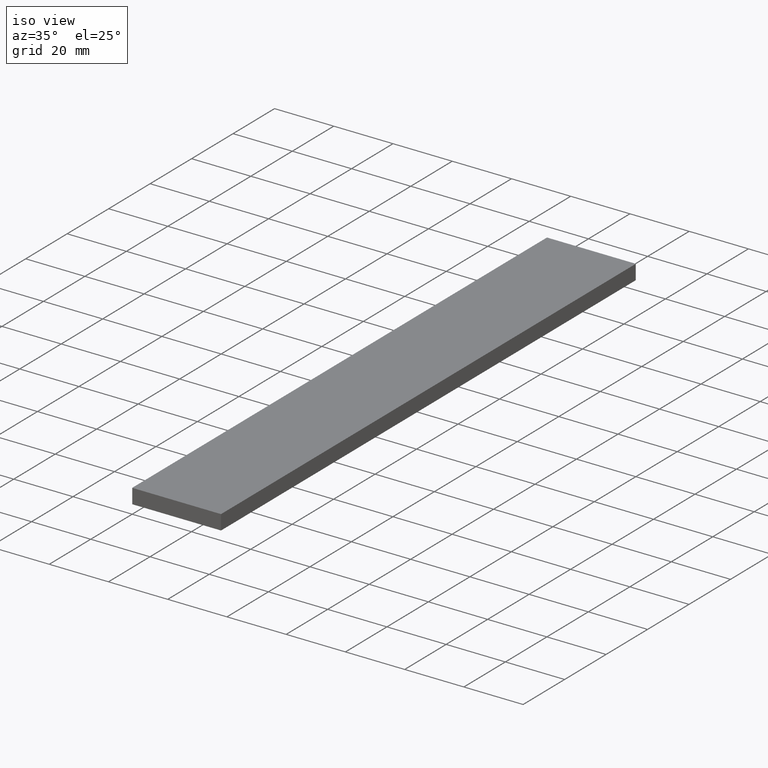
[diagram: clean part render]
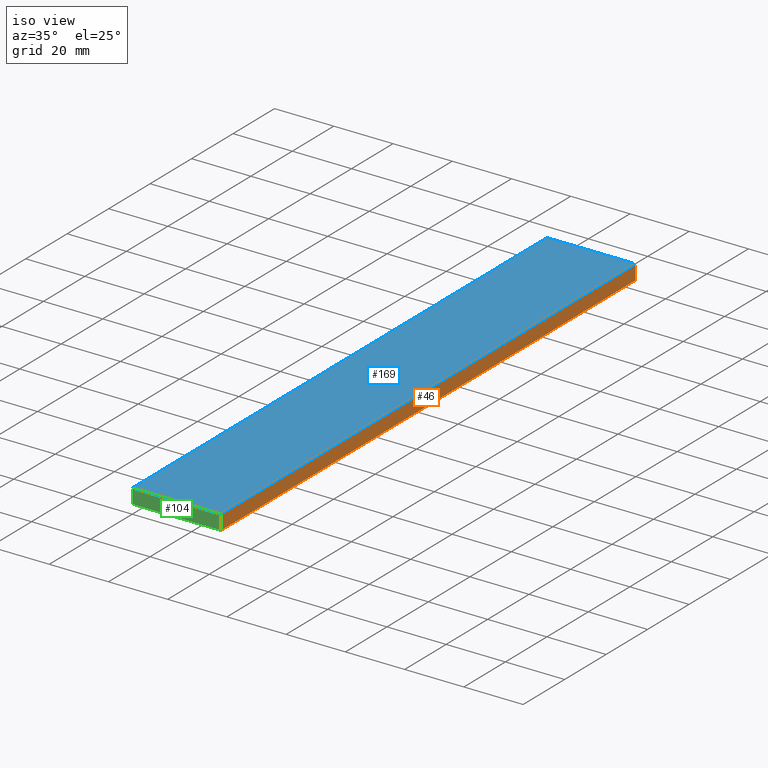
[diagram: same view with three faces highlighted in distinct colors, each labeled with its STEP entity id]
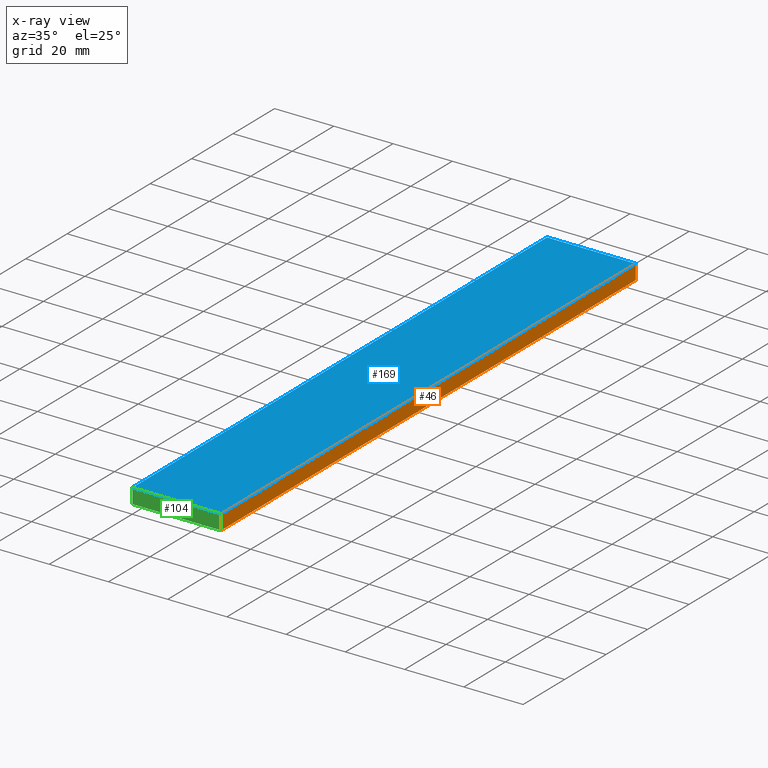
[diagram: x-ray of the same camera — body ghosted, the three highlighted faces saturated]
A machine part, iso view with three faces highlighted in distinct colors.
The next image is the same camera in x-ray (body ghosted, the three faces saturated) — at least one of them is partly hidden behind the body in this view.
Their STEP definitions:

[orange] entity #46 — the highlighted planar face has unit normal (-1, 0, 0).
#1 = ORIENTED_EDGE ( 'NONE', *, *, #225, .F. ) ;
#12 = DIRECTION ( 'NONE',  ( 0.0000000000000000000, 0.0000000000000000000, 1.000000000000000000 ) ) ;
#15 = PLANE ( 'NONE',  #78 ) ;
#17 = CARTESIAN_POINT ( 'NONE',  ( 30.00000000000000000, 0.0000000000000000000, 5.000000000000000000 ) ) ;
#26 = DIRECTION ( 'NONE',  ( 0.0000000000000000000, -1.000000000000000000, 0.0000000000000000000 ) ) ;
#33 = VERTEX_POINT ( 'NONE', #50 ) ;
#36 = VERTEX_POINT ( 'NONE', #60 ) ;
#46 = ADVANCED_FACE ( 'NONE', ( #228 ), #15, .F. ) ;
#48 = ORIENTED_EDGE ( 'NONE', *, *, #168, .F. ) ;
#50 = CARTESIAN_POINT ( 'NONE',  ( 30.00000000000000000, 200.0000000000000000, 0.0000000000000000000 ) ) ;
#51 = EDGE_CURVE ( 'NONE', #110, #36, #94, .T. ) ;
#54 = LINE ( 'NONE', #17, #166 ) ;
#60 = CARTESIAN_POINT ( 'NONE',  ( 30.00000000000000000, 0.0000000000000000000, 5.000000000000000000 ) ) ;
#69 = VERTEX_POINT ( 'NONE', #105 ) ;
#71 = VECTOR ( 'NONE', #222, 1000.000000000000000 ) ;
#78 = AXIS2_PLACEMENT_3D ( 'NONE', #178, #238, #12 ) ;
#92 = CARTESIAN_POINT ( 'NONE',  ( 30.00000000000000000, 1000.000000000000000, 0.0000000000000000000 ) ) ;
#94 = LINE ( 'NONE', #140, #165 ) ;
#105 = CARTESIAN_POINT ( 'NONE',  ( 30.00000000000000000, 0.0000000000000000000, 0.0000000000000000000 ) ) ;
#110 = VERTEX_POINT ( 'NONE', #171 ) ;
#120 = ORIENTED_EDGE ( 'NONE', *, *, #51, .T. ) ;
#127 = EDGE_CURVE ( 'NONE', #36, #69, #54, .T. ) ;
#135 = VECTOR ( 'NONE', #162, 1000.000000000000000 ) ;
#137 = CARTESIAN_POINT ( 'NONE',  ( 30.00000000000000000, 200.0000000000000000, 5.000000000000000000 ) ) ;
#139 = DIRECTION ( 'NONE',  ( 0.0000000000000000000, 0.0000000000000000000, -1.000000000000000000 ) ) ;
#140 = CARTESIAN_POINT ( 'NONE',  ( 30.00000000000000000, 1000.000000000000000, 5.000000000000000000 ) ) ;
#148 = LINE ( 'NONE', #137, #71 ) ;
#162 = DIRECTION ( 'NONE',  ( 0.0000000000000000000, -1.000000000000000000, 0.0000000000000000000 ) ) ;
#165 = VECTOR ( 'NONE', #26, 1000.000000000000000 ) ;
#166 = VECTOR ( 'NONE', #139, 1000.000000000000000 ) ;
#168 = EDGE_CURVE ( 'NONE', #33, #69, #192, .T. ) ;
#171 = CARTESIAN_POINT ( 'NONE',  ( 30.00000000000000000, 200.0000000000000000, 5.000000000000000000 ) ) ;
#178 = CARTESIAN_POINT ( 'NONE',  ( 30.00000000000000000, 1000.000000000000000, 5.000000000000000000 ) ) ;
#192 = LINE ( 'NONE', #92, #135 ) ;
#197 = ORIENTED_EDGE ( 'NONE', *, *, #127, .T. ) ;
#221 = EDGE_LOOP ( 'NONE', ( #197, #48, #1, #120 ) ) ;
#222 = DIRECTION ( 'NONE',  ( 0.0000000000000000000, 0.0000000000000000000, -1.000000000000000000 ) ) ;
#225 = EDGE_CURVE ( 'NONE', #110, #33, #148, .T. ) ;
#228 = FACE_OUTER_BOUND ( 'NONE', #221, .T. ) ;
#238 = DIRECTION ( 'NONE',  ( -1.000000000000000000, 0.0000000000000000000, 0.0000000000000000000 ) ) ;

[blue] entity #169 — the highlighted planar face has unit normal (0, 0, -1).
#13 = FACE_OUTER_BOUND ( 'NONE', #220, .T. ) ;
#22 = CARTESIAN_POINT ( 'NONE',  ( 0.0000000000000000000, 1000.000000000000000, 5.000000000000000000 ) ) ;
#26 = DIRECTION ( 'NONE',  ( 0.0000000000000000000, -1.000000000000000000, 0.0000000000000000000 ) ) ;
#36 = VERTEX_POINT ( 'NONE', #60 ) ;
#43 = CARTESIAN_POINT ( 'NONE',  ( 0.0000000000000000000, 200.0000000000000000, 5.000000000000000000 ) ) ;
#51 = EDGE_CURVE ( 'NONE', #110, #36, #94, .T. ) ;
#53 = EDGE_CURVE ( 'NONE', #231, #110, #149, .T. ) ;
#55 = PLANE ( 'NONE',  #216 ) ;
#60 = CARTESIAN_POINT ( 'NONE',  ( 30.00000000000000000, 0.0000000000000000000, 5.000000000000000000 ) ) ;
#62 = CARTESIAN_POINT ( 'NONE',  ( 0.0000000000000000000, 0.0000000000000000000, 5.000000000000000000 ) ) ;
#67 = LINE ( 'NONE', #62, #209 ) ;
#77 = ORIENTED_EDGE ( 'NONE', *, *, #51, .F. ) ;
#94 = LINE ( 'NONE', #140, #165 ) ;
#110 = VERTEX_POINT ( 'NONE', #171 ) ;
#118 = DIRECTION ( 'NONE',  ( -1.000000000000000000, 0.0000000000000000000, 0.0000000000000000000 ) ) ;
#121 = DIRECTION ( 'NONE',  ( 0.0000000000000000000, 0.0000000000000000000, -1.000000000000000000 ) ) ;
#124 = CARTESIAN_POINT ( 'NONE',  ( 0.0000000000000000000, 200.0000000000000000, 5.000000000000000000 ) ) ;
#125 = CARTESIAN_POINT ( 'NONE',  ( 0.0000000000000000000, 1000.000000000000000, 5.000000000000000000 ) ) ;
#128 = EDGE_CURVE ( 'NONE', #231, #175, #186, .T. ) ;
#140 = CARTESIAN_POINT ( 'NONE',  ( 30.00000000000000000, 1000.000000000000000, 5.000000000000000000 ) ) ;
#141 = DIRECTION ( 'NONE',  ( 0.0000000000000000000, -1.000000000000000000, 0.0000000000000000000 ) ) ;
#144 = DIRECTION ( 'NONE',  ( 1.000000000000000000, 0.0000000000000000000, 0.0000000000000000000 ) ) ;
#149 = LINE ( 'NONE', #124, #161 ) ;
#154 = ORIENTED_EDGE ( 'NONE', *, *, #128, .T. ) ;
#161 = VECTOR ( 'NONE', #182, 1000.000000000000000 ) ;
#165 = VECTOR ( 'NONE', #26, 1000.000000000000000 ) ;
#169 = ADVANCED_FACE ( 'NONE', ( #13 ), #55, .F. ) ;
#171 = CARTESIAN_POINT ( 'NONE',  ( 30.00000000000000000, 200.0000000000000000, 5.000000000000000000 ) ) ;
#175 = VERTEX_POINT ( 'NONE', #235 ) ;
#176 = EDGE_CURVE ( 'NONE', #175, #36, #67, .T. ) ;
#180 = VECTOR ( 'NONE', #141, 1000.000000000000000 ) ;
#182 = DIRECTION ( 'NONE',  ( 1.000000000000000000, 0.0000000000000000000, 0.0000000000000000000 ) ) ;
#184 = ORIENTED_EDGE ( 'NONE', *, *, #53, .F. ) ;
#186 = LINE ( 'NONE', #125, #180 ) ;
#190 = ORIENTED_EDGE ( 'NONE', *, *, #176, .T. ) ;
#209 = VECTOR ( 'NONE', #144, 1000.000000000000000 ) ;
#216 = AXIS2_PLACEMENT_3D ( 'NONE', #22, #121, #118 ) ;
#220 = EDGE_LOOP ( 'NONE', ( #190, #77, #184, #154 ) ) ;
#231 = VERTEX_POINT ( 'NONE', #43 ) ;
#235 = CARTESIAN_POINT ( 'NONE',  ( 0.0000000000000000000, 0.0000000000000000000, 5.000000000000000000 ) ) ;

[green] entity #104 — the highlighted planar face has unit normal (0, 1, 0).
#17 = CARTESIAN_POINT ( 'NONE',  ( 30.00000000000000000, 0.0000000000000000000, 5.000000000000000000 ) ) ;
#20 = LINE ( 'NONE', #64, #200 ) ;
#27 = ORIENTED_EDGE ( 'NONE', *, *, #127, .F. ) ;
#34 = ORIENTED_EDGE ( 'NONE', *, *, #176, .F. ) ;
#36 = VERTEX_POINT ( 'NONE', #60 ) ;
#37 = PLANE ( 'NONE',  #103 ) ;
#45 = CARTESIAN_POINT ( 'NONE',  ( 0.0000000000000000000, 0.0000000000000000000, 0.0000000000000000000 ) ) ;
#49 = DIRECTION ( 'NONE',  ( 1.000000000000000000, 0.0000000000000000000, 0.0000000000000000000 ) ) ;
#54 = LINE ( 'NONE', #17, #166 ) ;
#57 = DIRECTION ( 'NONE',  ( -1.000000000000000000, 0.0000000000000000000, 0.0000000000000000000 ) ) ;
#60 = CARTESIAN_POINT ( 'NONE',  ( 30.00000000000000000, 0.0000000000000000000, 5.000000000000000000 ) ) ;
#62 = CARTESIAN_POINT ( 'NONE',  ( 0.0000000000000000000, 0.0000000000000000000, 5.000000000000000000 ) ) ;
#64 = CARTESIAN_POINT ( 'NONE',  ( 30.00000000000000000, 0.0000000000000000000, 0.0000000000000000000 ) ) ;
#67 = LINE ( 'NONE', #62, #209 ) ;
#69 = VERTEX_POINT ( 'NONE', #105 ) ;
#70 = ORIENTED_EDGE ( 'NONE', *, *, #116, .F. ) ;
#90 = DIRECTION ( 'NONE',  ( 0.0000000000000000000, 0.0000000000000000000, 1.000000000000000000 ) ) ;
#93 = DIRECTION ( 'NONE',  ( -0.0000000000000000000, 1.000000000000000000, 0.0000000000000000000 ) ) ;
#103 = AXIS2_PLACEMENT_3D ( 'NONE', #45, #93, #49 ) ;
#104 = ADVANCED_FACE ( 'NONE', ( #123 ), #37, .F. ) ;
#105 = CARTESIAN_POINT ( 'NONE',  ( 30.00000000000000000, 0.0000000000000000000, 0.0000000000000000000 ) ) ;
#108 = VECTOR ( 'NONE', #90, 1000.000000000000000 ) ;
#109 = LINE ( 'NONE', #189, #108 ) ;
#112 = VERTEX_POINT ( 'NONE', #131 ) ;
#116 = EDGE_CURVE ( 'NONE', #112, #175, #109, .T. ) ;
#123 = FACE_OUTER_BOUND ( 'NONE', #212, .T. ) ;
#127 = EDGE_CURVE ( 'NONE', #36, #69, #54, .T. ) ;
#131 = CARTESIAN_POINT ( 'NONE',  ( 0.0000000000000000000, 0.0000000000000000000, 0.0000000000000000000 ) ) ;
#139 = DIRECTION ( 'NONE',  ( 0.0000000000000000000, 0.0000000000000000000, -1.000000000000000000 ) ) ;
#144 = DIRECTION ( 'NONE',  ( 1.000000000000000000, 0.0000000000000000000, 0.0000000000000000000 ) ) ;
#166 = VECTOR ( 'NONE', #139, 1000.000000000000000 ) ;
#175 = VERTEX_POINT ( 'NONE', #235 ) ;
#176 = EDGE_CURVE ( 'NONE', #175, #36, #67, .T. ) ;
#189 = CARTESIAN_POINT ( 'NONE',  ( 0.0000000000000000000, 0.0000000000000000000, 0.0000000000000000000 ) ) ;
#194 = EDGE_CURVE ( 'NONE', #69, #112, #20, .T. ) ;
#200 = VECTOR ( 'NONE', #57, 1000.000000000000000 ) ;
#209 = VECTOR ( 'NONE', #144, 1000.000000000000000 ) ;
#212 = EDGE_LOOP ( 'NONE', ( #70, #229, #27, #34 ) ) ;
#229 = ORIENTED_EDGE ( 'NONE', *, *, #194, .F. ) ;
#235 = CARTESIAN_POINT ( 'NONE',  ( 0.0000000000000000000, 0.0000000000000000000, 5.000000000000000000 ) ) ;